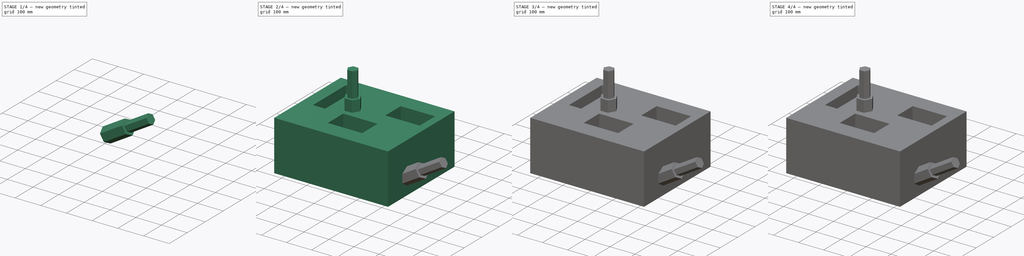
[diagram: build sequence overview — one tinted view per stage of 4, left to right]
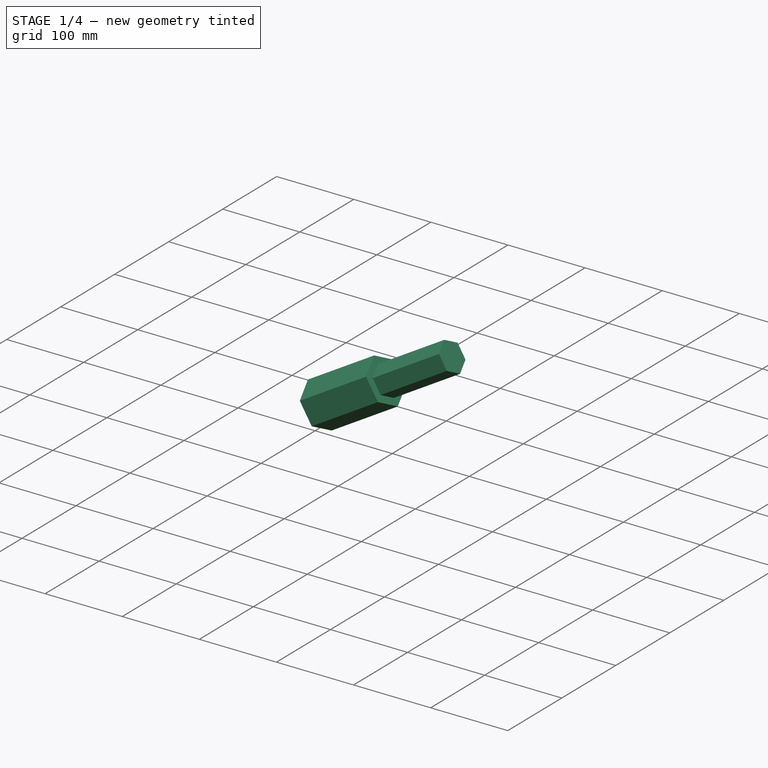
[diagram: stage 1 of 4 — iso view after this stage's code; geometry added in this stage tinted green]
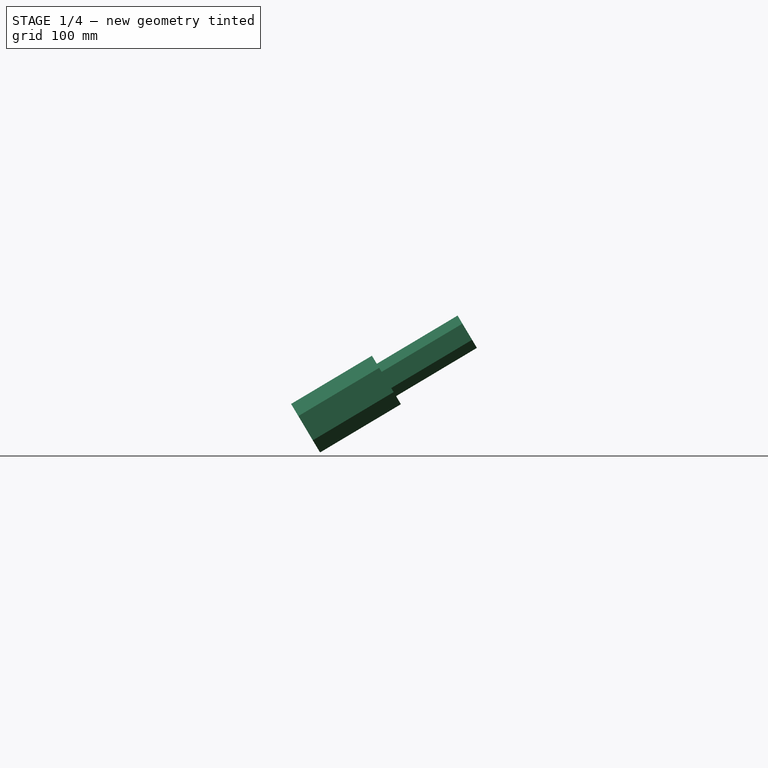
[diagram: stage 1 of 4 — front view after this stage's code; geometry added in this stage tinted green]
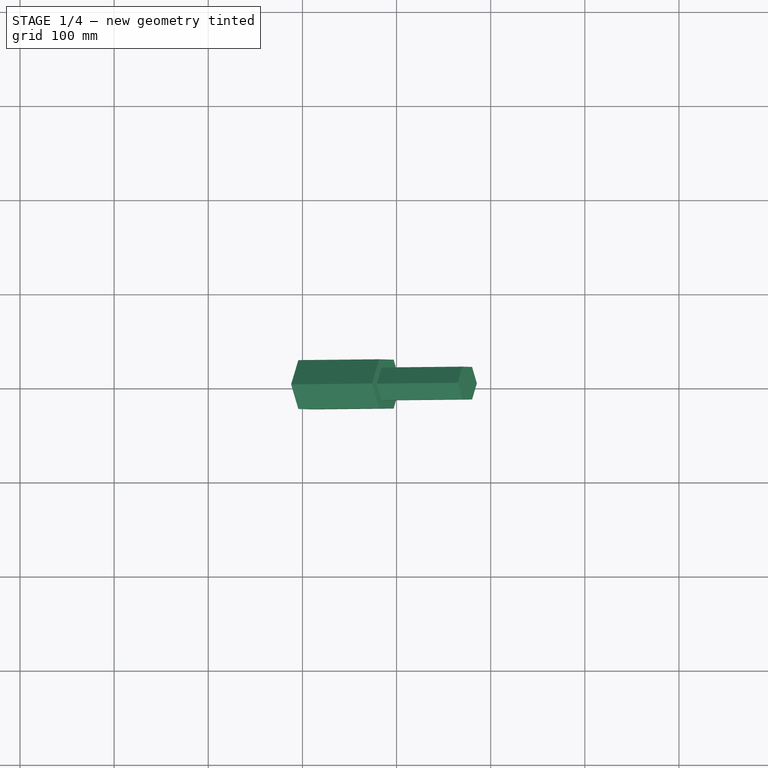
[diagram: stage 1 of 4 — top view after this stage's code; geometry added in this stage tinted green]
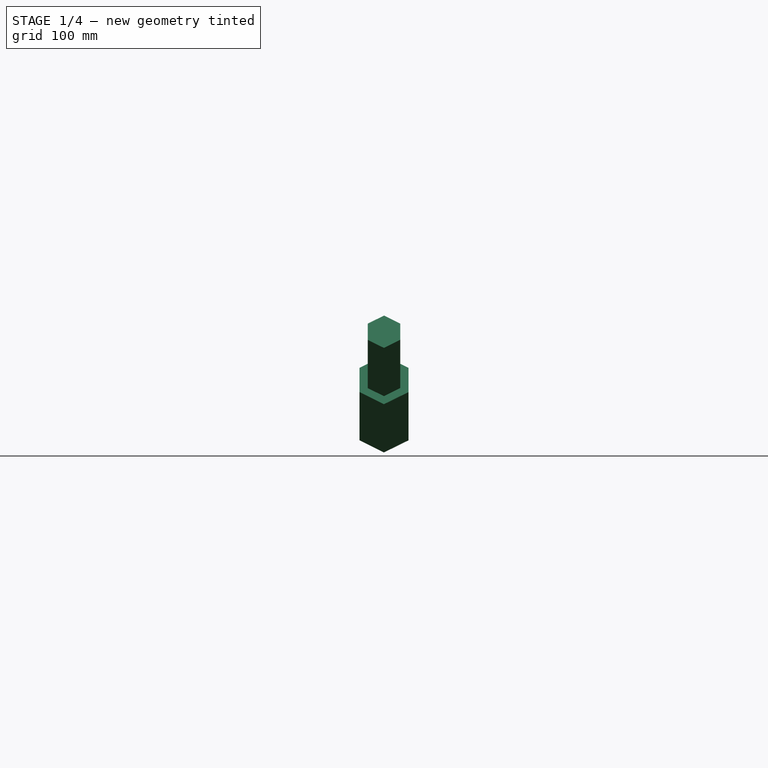
[diagram: stage 1 of 4 — right view after this stage's code; geometry added in this stage tinted green]
FCSTD DOCUMENT  (FreeCAD 0.17R12396 (Git))
Label: zwei_gleiche_fenster
License: All rights reserved
LicenseURL: http://en.wikipedia.org/wiki/All_rights_reserved
objects: Sketcher::SketchObject×5, PartDesign::Pocket×4, Part::Feature×3, Part::MultiFuse×3, Part::Prism×2, PartDesign::Pad×1, PartDesign::Body×1, Part::FeaturePython×1
note: 25 computed .brp shape members not serialized (recipe doc carries the construction recipe); baked Part::Feature solids carry a one-line shape summary decoded from their .brp

FEATURE [PartDesign::Body] Body
  Group = -> [Sketch,Pad,Sketch001,Pocket,Sketch002,Pocket001,Sketch003,Pocket002,Sketch004,Pocket001001002]
  Origin = -> Origin
  Tip = -> Pocket001001002
FEATURE [Part::Feature] Clone001  label="Clone of Pocket005-scale of Pocket004"
  Placement = pos=(17,-26,-1) rot=(-0.730206,-0.468311,-0.497478;0.568085rad)
  shape: bbox 757.6 x 671.6 x 588 mm, 31 faces (baked)
FEATURE [Part::Prism] Prism
  AttacherType = Attacher::AttachEngine3D
  Circumradius = 30
  Height = 100
  Polygon = 6
FEATURE [Part::Prism] Prism001
  AttacherType = Attacher::AttachEngine3D
  Circumradius = 20
  Height = 200
  Polygon = 6
FEATURE [Part::MultiFuse] Fusion
  Placement = pos=(303.354,-96.1125,55.4874) rot=(0,1,0;1.03287rad)
  Shapes = -> [Prism,Prism001]
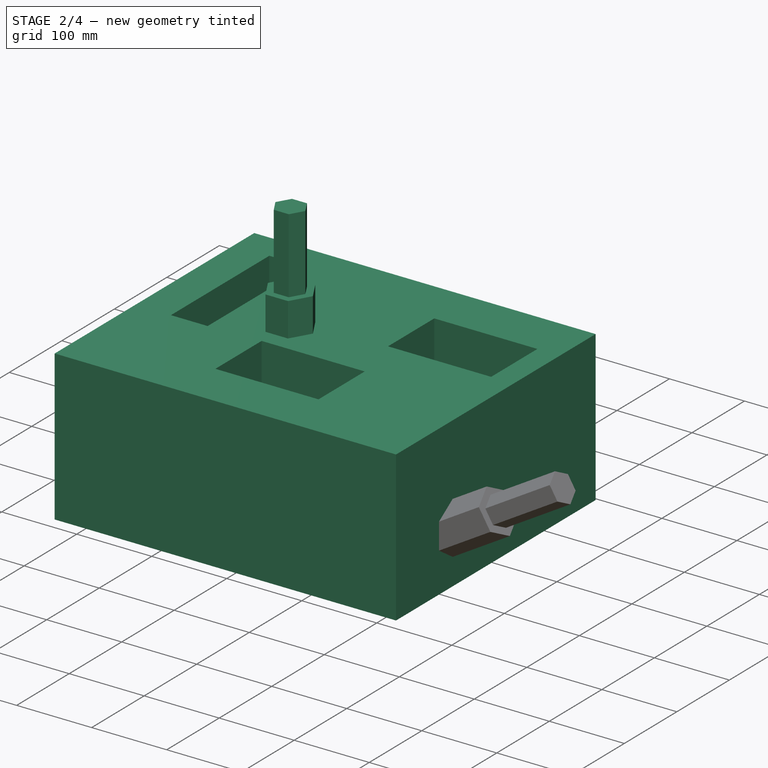
[diagram: stage 2 of 4 — iso view after this stage's code; geometry added in this stage tinted green]
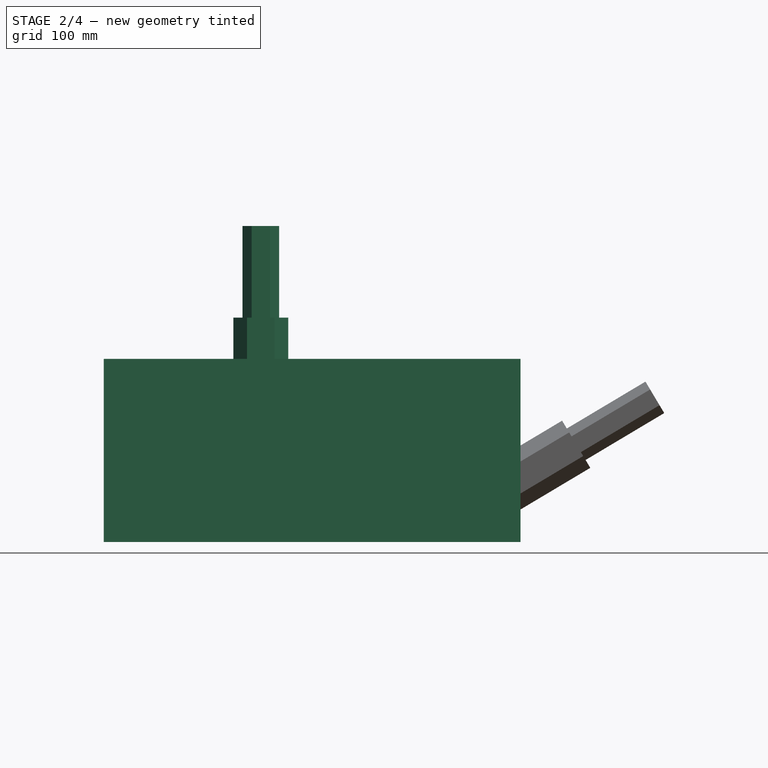
[diagram: stage 2 of 4 — front view after this stage's code; geometry added in this stage tinted green]
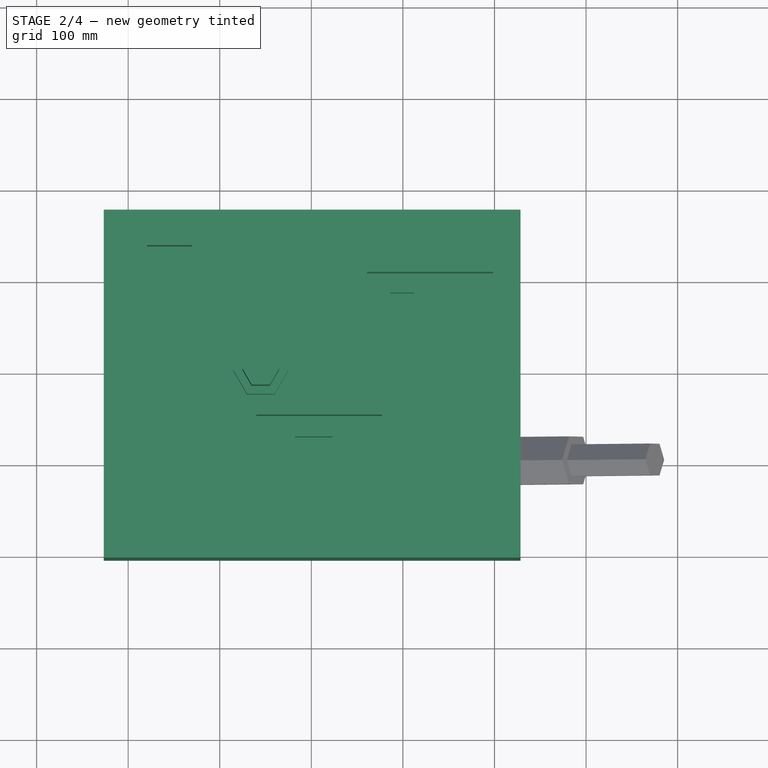
[diagram: stage 2 of 4 — top view after this stage's code; geometry added in this stage tinted green]
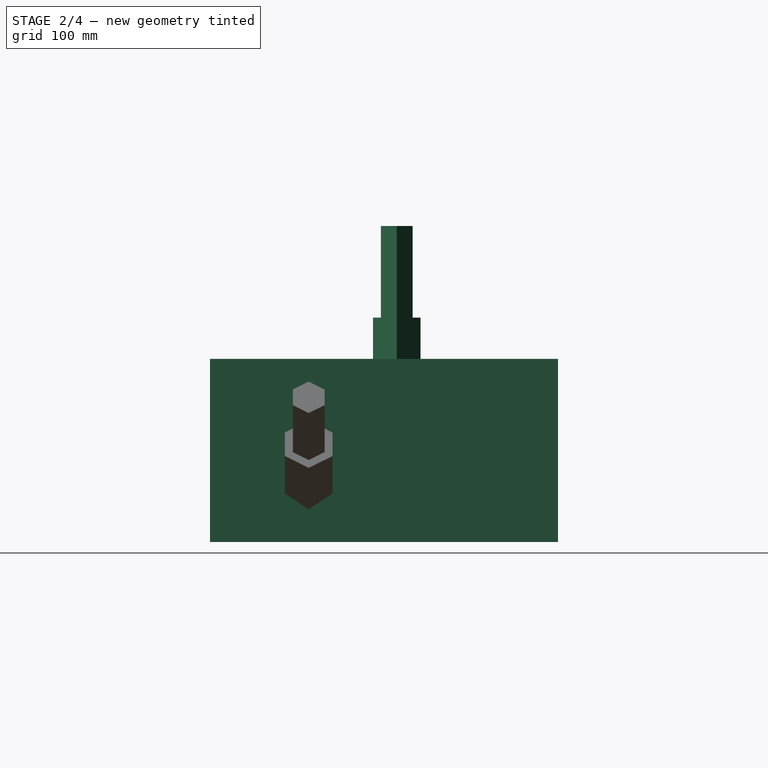
[diagram: stage 2 of 4 — right view after this stage's code; geometry added in this stage tinted green]
FEATURE [Part::FeaturePython] Clone  label="Clone of Fusion"  # Draft clone (typed FeaturePython)
  AttacherType = Attacher::AttachEngine3D
  Objects = -> [Fusion]
  Placement = pos=(44.8185,8.64553e-06,145.048) rot=(0,0,1;0rad)
  Scale = (1,1,1)
FEATURE [Part::Feature] Pocket001001003  label="Pocket001 simple Copy"
  shape: bbox 455.1 x 379.9 x 200 mm, 31 faces (baked)
FEATURE [Part::MultiFuse] Fusion001
  Shapes = -> [Pocket001001003,Fusion]
FEATURE [Part::MultiFuse] Fusion002
  Shapes = -> [Pocket001001003,Clone]
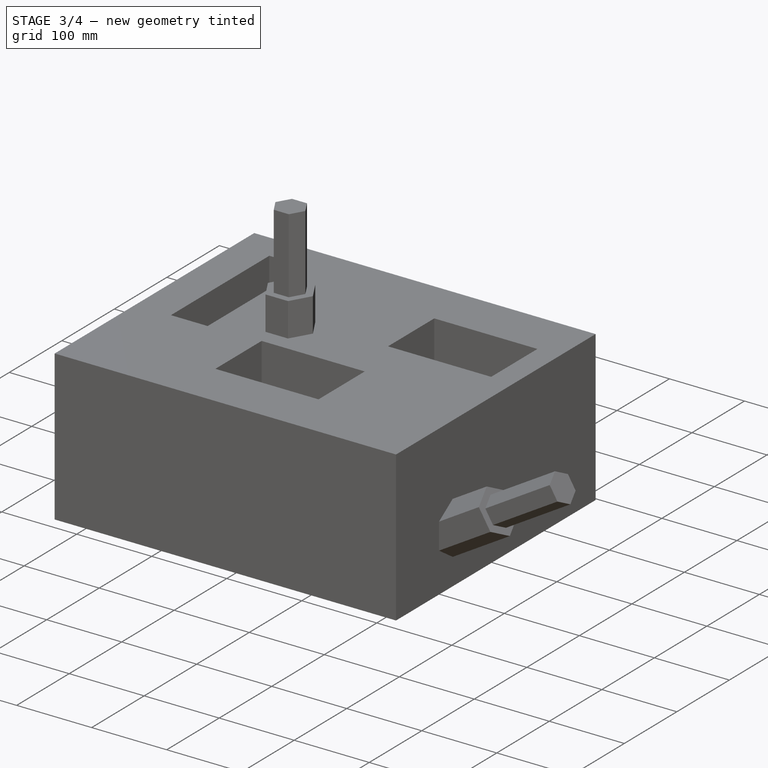
[diagram: stage 3 of 4 — iso view after this stage's code; geometry added in this stage tinted green]
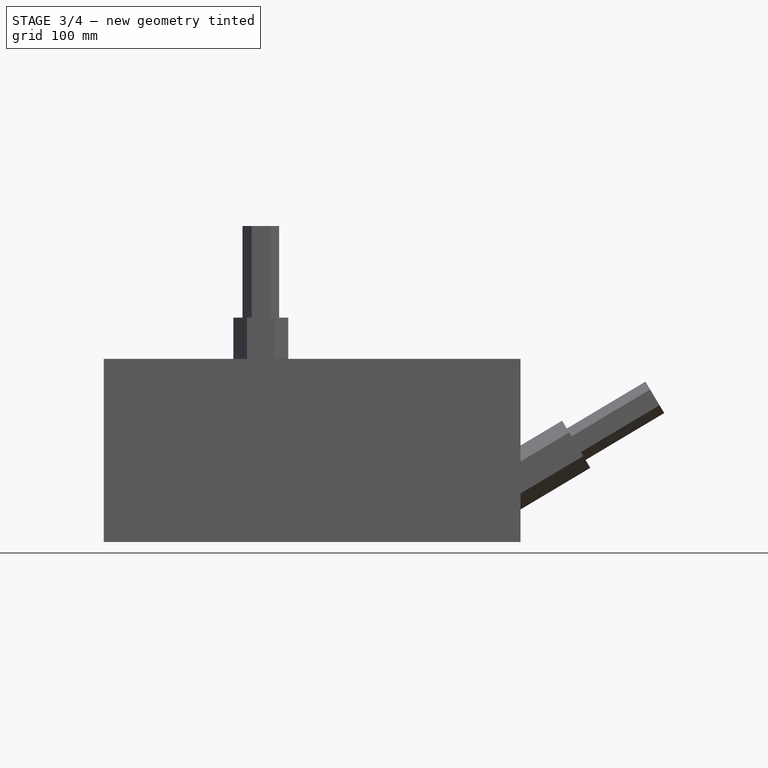
[diagram: stage 3 of 4 — front view after this stage's code; geometry added in this stage tinted green]
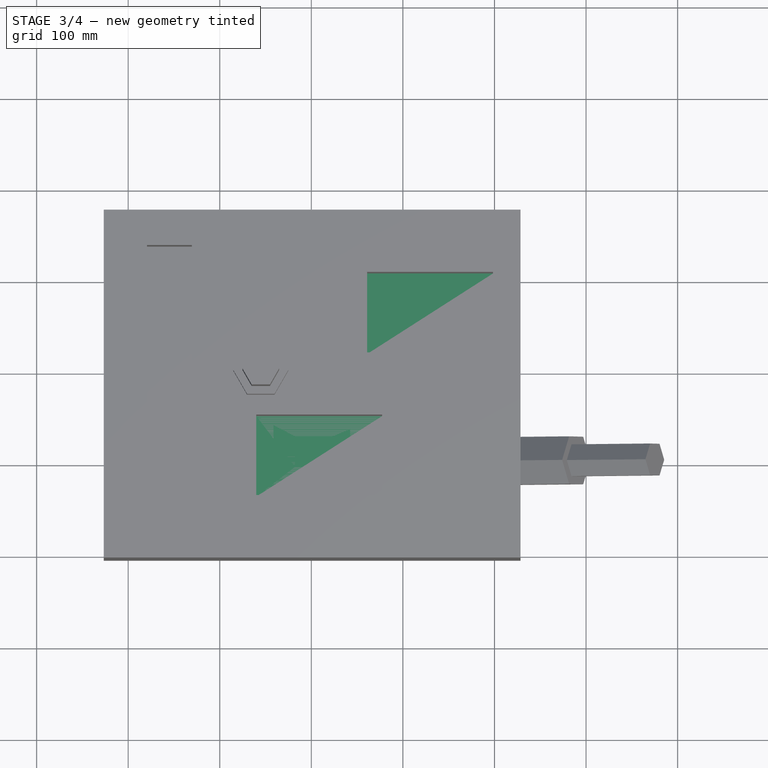
[diagram: stage 3 of 4 — top view after this stage's code; geometry added in this stage tinted green]
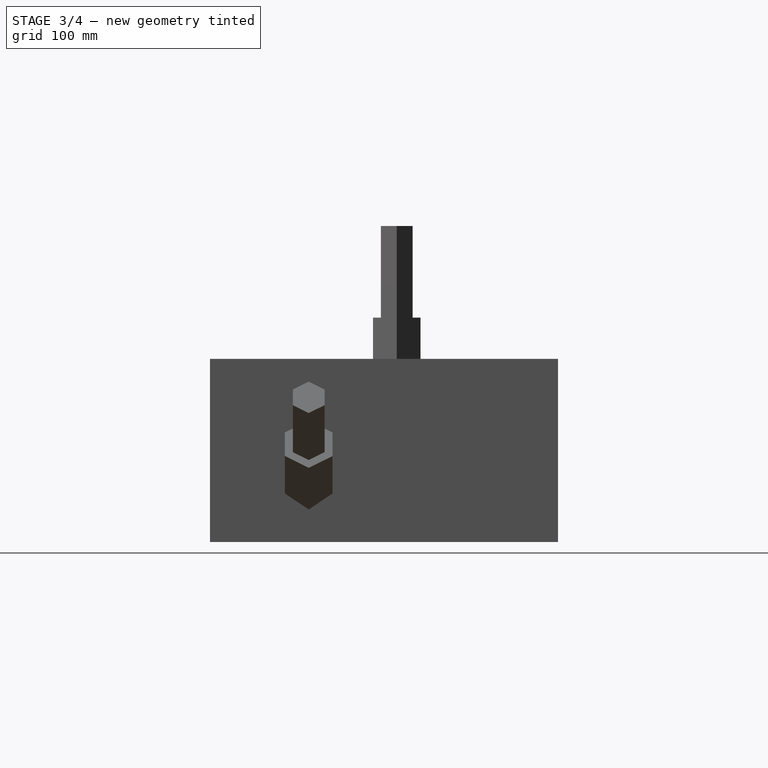
[diagram: stage 3 of 4 — right view after this stage's code; geometry added in this stage tinted green]
FEATURE [Sketcher::SketchObject] Sketch
  MapMode = 5
  Support = -> [XY_Plane]
  sketch-geometry (4):
    g0: LineSegment StartX=-126.641 StartY=176.045 StartZ=0 EndX=328.431 EndY=176.045 EndZ=0
    g1: LineSegment StartX=328.431 StartY=176.045 StartZ=0 EndX=328.431 EndY=-203.878 EndZ=0
    g2: LineSegment StartX=328.431 StartY=-203.878 StartZ=0 EndX=-126.641 EndY=-203.878 EndZ=0
    g3: LineSegment StartX=-126.641 StartY=-203.878 StartZ=0 EndX=-126.641 EndY=176.045 EndZ=0
  constraints (8):
    c: Coincident(g0,g1)
    c: Coincident(g1,g2)
    c: Coincident(g2,g3)
    c: Coincident(g3,g0)
    c: Horizontal(g0)
    c: Horizontal(g2)
    c: Vertical(g1)
    c: Vertical(g3)
FEATURE [PartDesign::Pad] Pad
  Length = 200
  Length2 = 100
  Profile = -> Sketch
  Type = 0
FEATURE [Sketcher::SketchObject] Sketch001
  MapMode = 5
  Placement = pos=(0,0,200) rot=(0,0,1;0rad)
  Support = -> [Pad]
  sketch-geometry (12):
    g0: LineSegment StartX=-79.4915 StartY=137.396 StartZ=0 EndX=-30.4671 EndY=137.396 EndZ=0
    g1: LineSegment StartX=-30.4671 StartY=137.396 StartZ=0 EndX=-30.4671 EndY=-49.929 EndZ=0
    g2: LineSegment StartX=-30.4671 StartY=-49.929 StartZ=0 EndX=-79.4915 EndY=-49.929 EndZ=0
    g3: LineSegment StartX=-79.4915 StartY=-49.929 StartZ=0 EndX=-79.4915 EndY=137.396 EndZ=0
    g4: LineSegment StartX=160.901 StartY=108.113 StartZ=0 EndX=298.403 EndY=108.113 EndZ=0
    g5: LineSegment StartX=298.403 StartY=108.113 StartZ=0 EndX=298.403 EndY=20.1037 EndZ=0
    g6: LineSegment StartX=298.403 StartY=20.1037 StartZ=0 EndX=160.901 EndY=20.1037 EndZ=0
    g7: LineSegment StartX=160.901 StartY=20.1037 StartZ=0 EndX=160.901 EndY=108.113 EndZ=0
    g8: LineSegment StartX=39.8293 StartY=-47.6408 StartZ=0 EndX=177.331 EndY=-47.6408 EndZ=0
    g9: LineSegment StartX=177.331 StartY=-47.6408 StartZ=0 EndX=177.331 EndY=-135.65 EndZ=0
    g10: LineSegment StartX=177.331 StartY=-135.65 StartZ=0 EndX=39.8293 EndY=-135.65 EndZ=0
    g11: LineSegment StartX=39.8293 StartY=-135.65 StartZ=0 EndX=39.8293 EndY=-47.6408 EndZ=0
  constraints (26):
    c: Coincident(g0,g1)
    c: Coincident(g1,g2)
    c: Coincident(g2,g3)
    c: Coincident(g3,g0)
    c: Horizontal(g0)
    c: Horizontal(g2)
    c: Vertical(g1)
    c: Vertical(g3)
    c: Coincident(g4,g5)
    c: Coincident(g5,g6)
    c: Coincident(g6,g7)
    c: Coincident(g7,g4)
    c: Horizontal(g4)
    c: Horizontal(g6)
    c: Vertical(g5)
    c: Vertical(g7)
    c: Coincident(g8,g9)
    c: Coincident(g9,g10)
    c: Coincident(g10,g11)
    c: Coincident(g11,g8)
    c: Horizontal(g8)
    c: Horizontal(g10)
    c: Vertical(g9)
    c: Vertical(g11)
    c: Equal(g8,g6)
    c: Equal(g7,g11)
FEATURE [PartDesign::Pocket] Pocket
  BaseFeature = -> Pad
  Length = 100
  Profile = -> Sketch001
  Type = 0
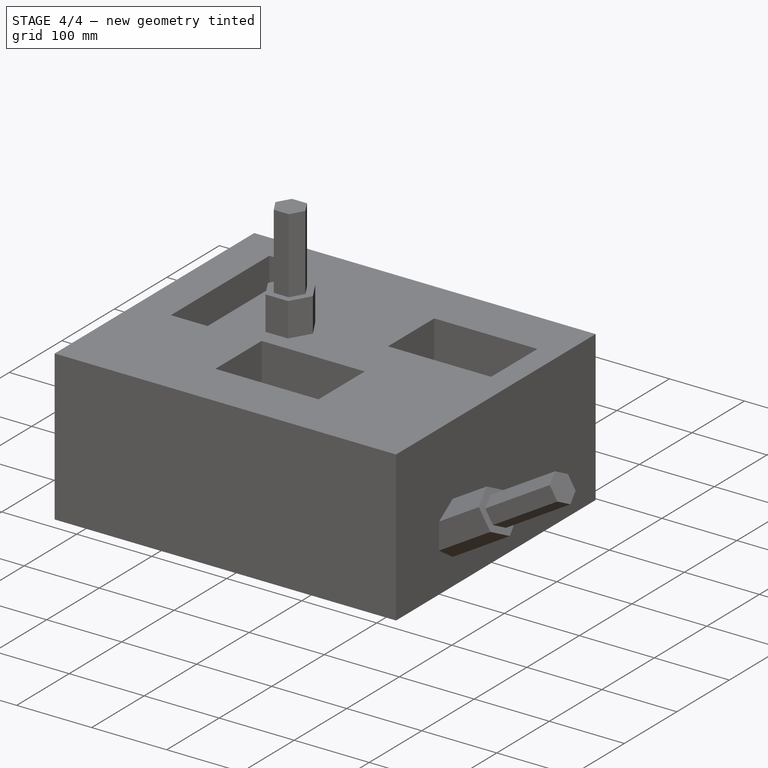
[diagram: stage 4 of 4 — iso view after this stage's code; geometry added in this stage tinted green]
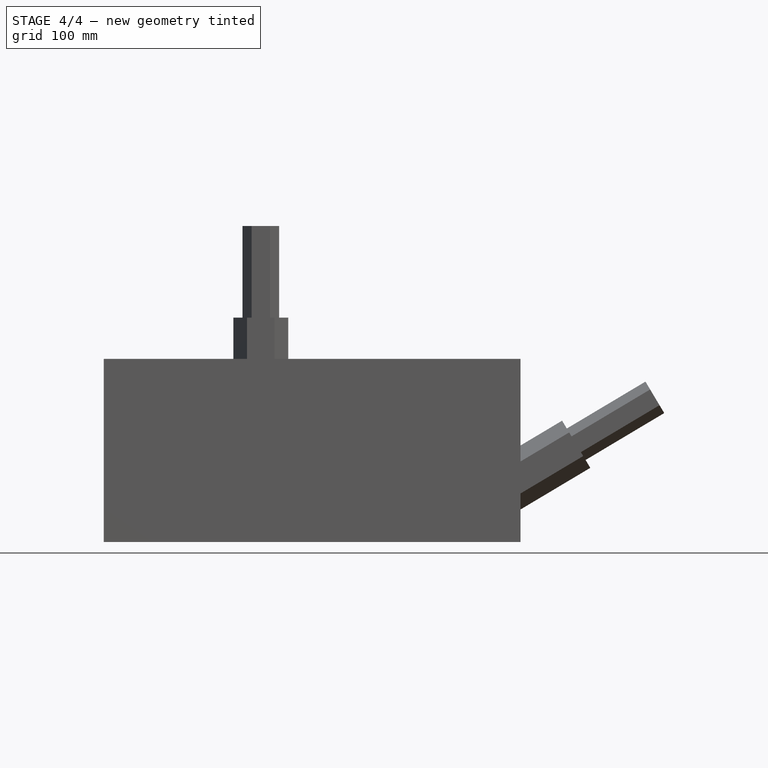
[diagram: stage 4 of 4 — front view after this stage's code; geometry added in this stage tinted green]
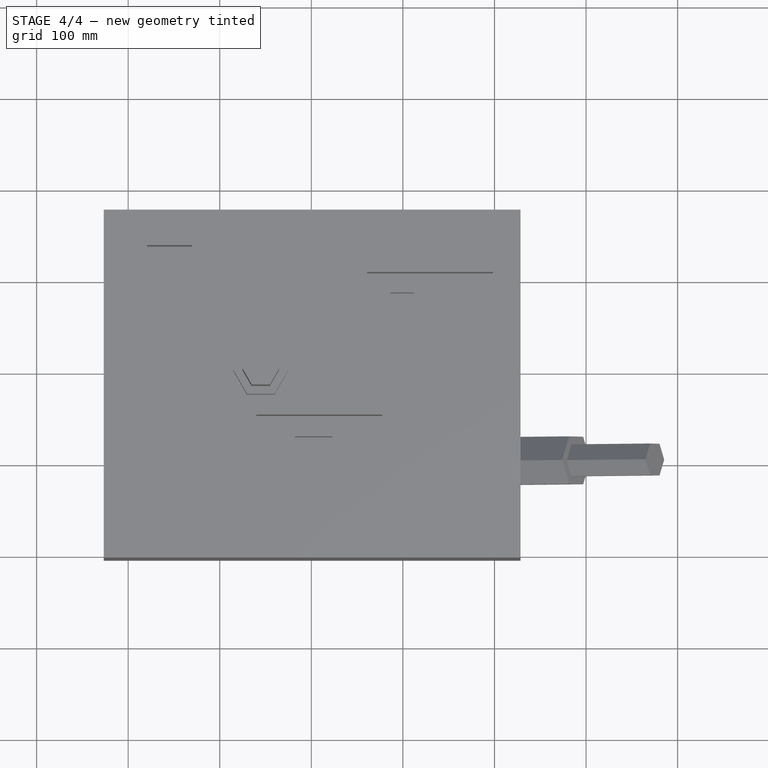
[diagram: stage 4 of 4 — top view after this stage's code; geometry added in this stage tinted green]
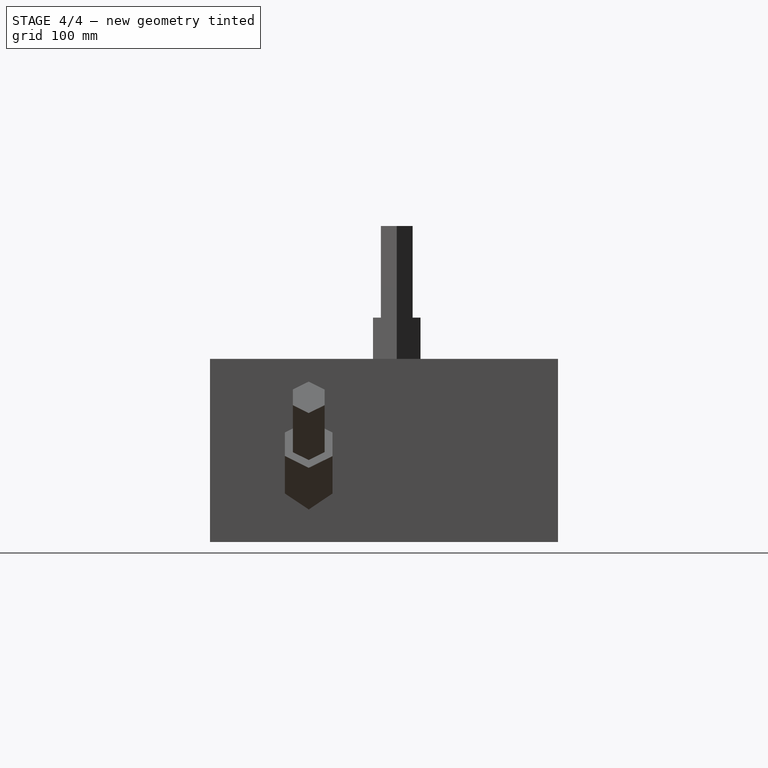
[diagram: stage 4 of 4 — right view after this stage's code; geometry added in this stage tinted green]
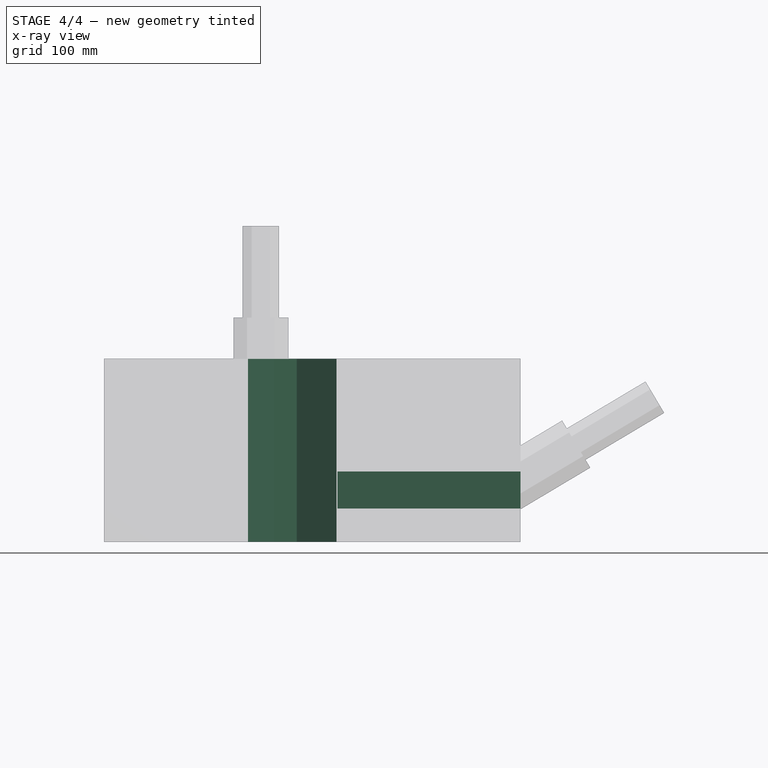
[diagram: stage 4 of 4 — x-ray composite at the front view; earlier geometry ghosted, this stage's added geometry solid]
FEATURE [Sketcher::SketchObject] Sketch002
  MapMode = 5
  Placement = pos=(0,0,100) rot=(0,0,1;0rad)
  Support = -> [Pocket]
  sketch-geometry (8):
    g0: LineSegment StartX=186.287 StartY=87.3506 StartZ=0 EndX=212.067 EndY=87.3506 EndZ=0
    g1: LineSegment StartX=212.067 StartY=87.3506 StartZ=0 EndX=212.067 EndY=59.4228 EndZ=0
    g2: LineSegment StartX=212.067 StartY=59.4228 StartZ=0 EndX=186.287 EndY=59.4228 EndZ=0
    g3: LineSegment StartX=186.287 StartY=59.4228 StartZ=0 EndX=186.287 EndY=87.3506 EndZ=0
    g4: LineSegment StartX=82.2324 StartY=-69.8364 StartZ=0 EndX=123.05 EndY=-69.8364 EndZ=0
    g5: LineSegment StartX=123.05 StartY=-69.8364 StartZ=0 EndX=123.05 EndY=-103.135 EndZ=0
    g6: LineSegment StartX=123.05 StartY=-103.135 StartZ=0 EndX=82.2324 EndY=-103.135 EndZ=0
    g7: LineSegment StartX=82.2324 StartY=-103.135 StartZ=0 EndX=82.2324 EndY=-69.8364 EndZ=0
  constraints (16):
    c: Coincident(g0,g1)
    c: Coincident(g1,g2)
    c: Coincident(g2,g3)
    c: Coincident(g3,g0)
    c: Horizontal(g0)
    c: Horizontal(g2)
    c: Vertical(g1)
    c: Vertical(g3)
    c: Coincident(g4,g5)
    c: Coincident(g5,g6)
    c: Coincident(g6,g7)
    c: Coincident(g7,g4)
    c: Horizontal(g4)
    c: Horizontal(g6)
    c: Vertical(g5)
    c: Vertical(g7)
FEATURE [PartDesign::Pocket] Pocket001
  BaseFeature = -> Pocket
  Length = 60
  Profile = -> Sketch002
  Type = 0
FEATURE [Sketcher::SketchObject] Sketch003
  MapMode = 5
  Placement = pos=(0,0,200) rot=(0,0,1;0rad)
  Support = -> [Pocket001]
  sketch-geometry (6):
    g0: LineSegment StartX=30.598 StartY=99.9855 StartZ=0 EndX=81.6033 EndY=141.038 EndZ=0
    g1: LineSegment StartX=81.6033 StartY=141.038 StartZ=0 EndX=127.632 EndY=103.718 EndZ=0
    g2: LineSegment StartX=127.632 StartY=103.718 StartZ=0 EndX=84.0914 EndY=62.6645 EndZ=0
    g3: LineSegment StartX=84.0914 StartY=62.6645 StartZ=0 EndX=59.2107 EndY=75.1049 EndZ=0
    g4: LineSegment StartX=59.2107 StartY=75.1049 StartZ=0 EndX=84.0914 EndY=108.694 EndZ=0
    g5: LineSegment StartX=84.0914 StartY=108.694 StartZ=0 EndX=30.598 EndY=99.9855 EndZ=0
  constraints (6):
    c: Coincident(g0,g1)
    c: Coincident(g1,g2)
    c: Coincident(g2,g3)
    c: Coincident(g3,g4)
    c: Coincident(g4,g5)
    c: Coincident(g5,g0)
FEATURE [PartDesign::Pocket] Pocket002
  BaseFeature = -> Pocket001
  Length = 100
  Profile = -> Sketch003
  Type = 1
FEATURE [Part::Feature] Pocket001001001  label="Pocket004- rotation of Pocket001"
  Placement = pos=(17,-26,-1) rot=(-0.730206,-0.468311,-0.497478;0.568085rad)
  shape: bbox 582.8 x 516.6 x 452.3 mm, 31 faces (baked)
FEATURE [Sketcher::SketchObject] Sketch004
  MapMode = 5
  Placement = pos=(328.431,0,0) rot=(0.57735,0.57735,0.57735;2.0944rad)
  Support = -> [Pocket001]
  sketch-geometry (4):
    g0: LineSegment StartX=-29.5524 StartY=77.0077 StartZ=0 EndX=29.3085 EndY=77.0077 EndZ=0
    g1: LineSegment StartX=29.3085 StartY=77.0077 StartZ=0 EndX=29.3085 EndY=36.5408 EndZ=0
    g2: LineSegment StartX=29.3085 StartY=36.5408 StartZ=0 EndX=-29.5524 EndY=36.5408 EndZ=0
    g3: LineSegment StartX=-29.5524 StartY=36.5408 StartZ=0 EndX=-29.5524 EndY=77.0077 EndZ=0
  constraints (8):
    c: Coincident(g0,g1)
    c: Coincident(g1,g2)
    c: Coincident(g2,g3)
    c: Coincident(g3,g0)
    c: Horizontal(g0)
    c: Horizontal(g2)
    c: Vertical(g1)
    c: Vertical(g3)
FEATURE [PartDesign::Pocket] Pocket001001002
  BaseFeature = -> Pocket002
  Length = 200
  Profile = -> Sketch004
  Type = 0
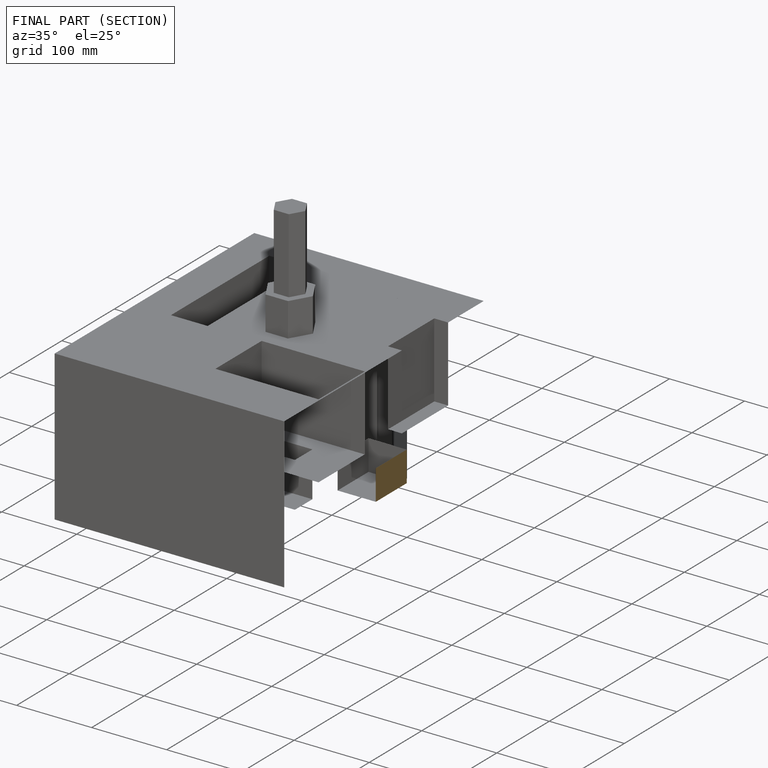
[diagram: finished part — half-section view (interior)]
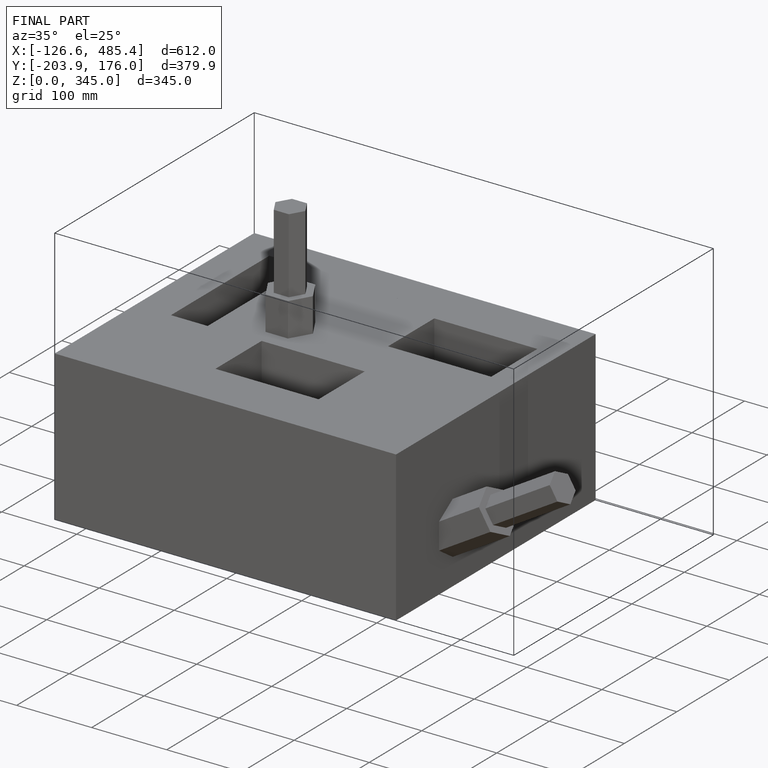
[diagram: finished part — iso view with bounding-box wireframe]
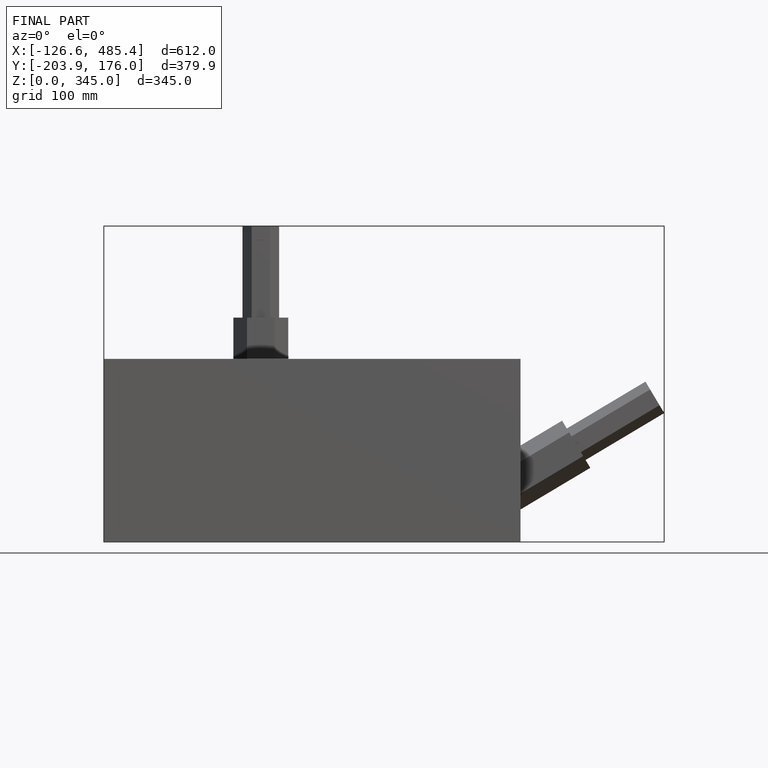
[diagram: finished part — front view with bounding-box wireframe]
